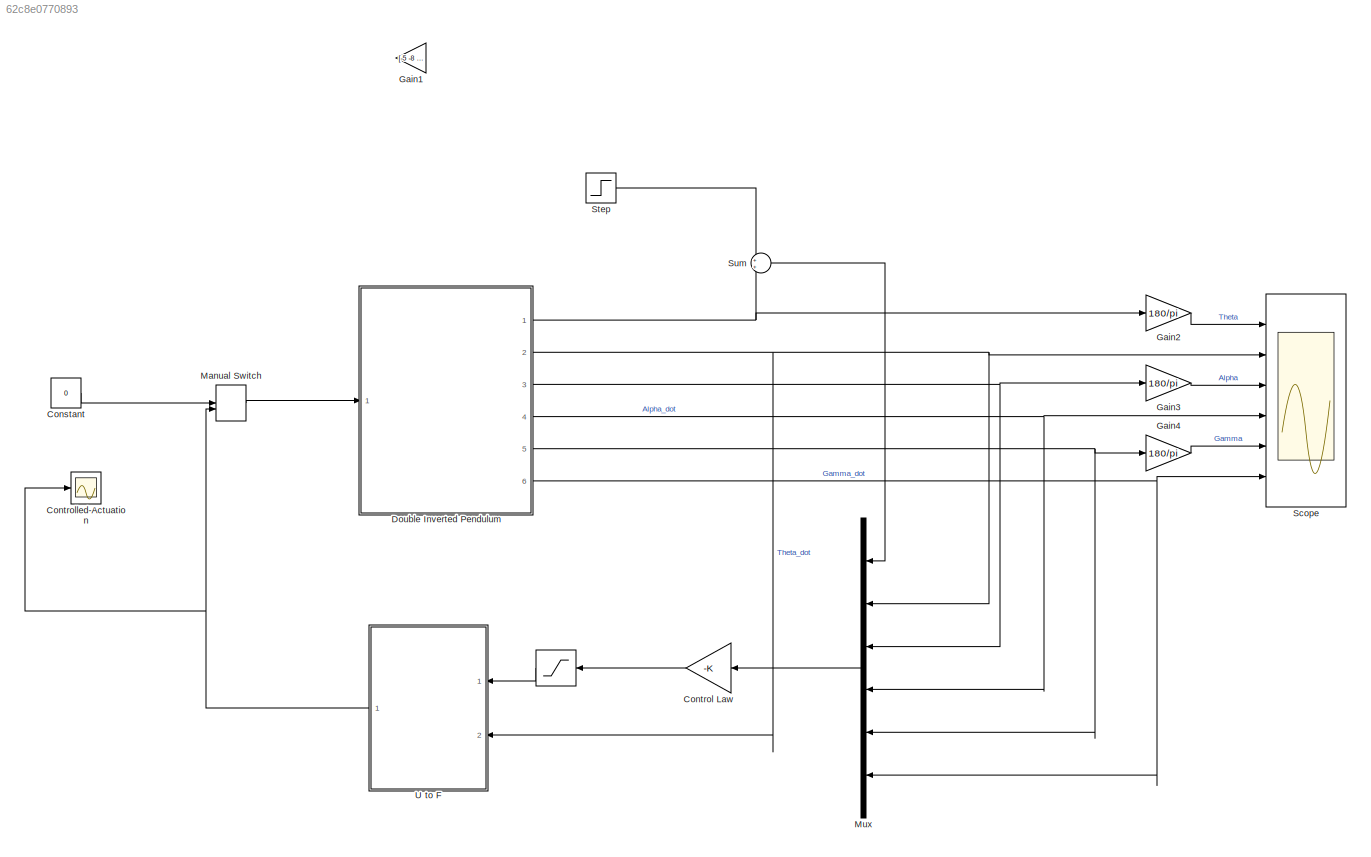
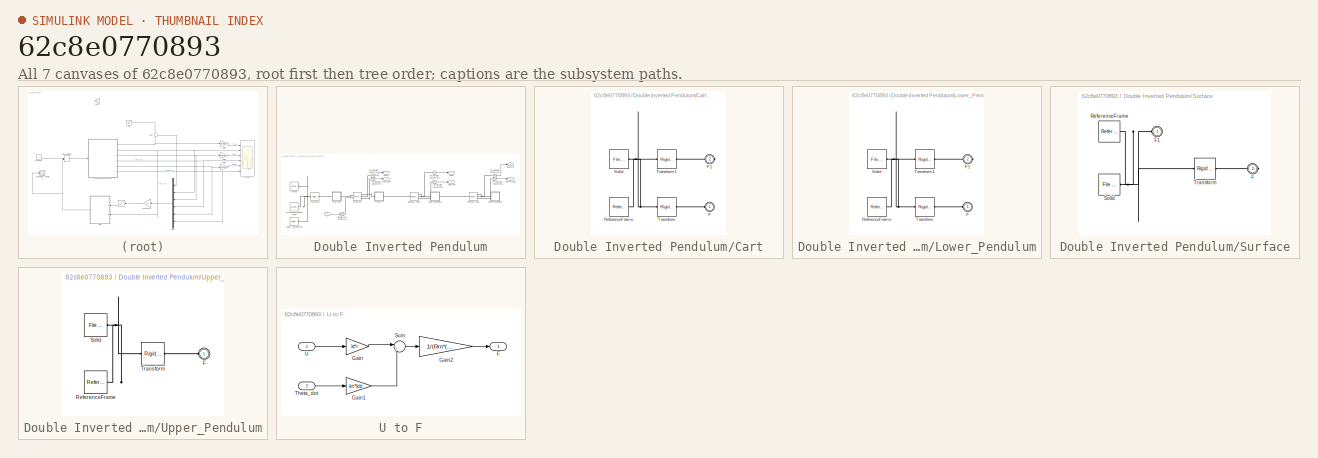
[diagram: thumbnail index - all 7 canvases of the model, root first then tree order]
MODEL slx_62c8e0770893
KIND model
CONFIG AbsTol = auto
CONFIG EnableMultiTasking = off
CONFIG FixedStep = auto
CONFIG MaxStep = auto
CONFIG MinStep = auto
CONFIG RelTol = 1e-3
CONFIG SampleTimeConstraint = Unconstrained
CONFIG Solver = VariableStepAuto
CONFIG SolverName = VariableStepAuto
CONFIG StartTime = 0.0
CONFIG StopTime = 20
WORKSPACE source: external: MATLAB File  (data not in archive)
BLOCK [Saturate]  
  LowerLimit = -24
  NameLocation = top
  UpperLimit = 24
BLOCK [Constant] Constant
  Value = 0
BLOCK [Gain] Control Law
  Gain = -K
  Multiplication = Matrix(K*u)
BLOCK [Scope] Controlled-Actuation
  Floating = off
  NumInputPorts = 1
  Ports = [1]
  ScopeSpecificationString = Simulink.scopes.TimeScopeBlockCfg('CurrentConfiguration', extmgr.ConfigurationSet(extmgr.Configuration('Core','General UI',true),extmgr.Configuration('Core','Source UI',true),extmgr.Configuration('Sources','WiredSimulink',true,'DataLoggingVariableName','ScopeData1'),extmgr.Configuration('Visuals','Time Domain',true,'SerializedDisplays',{struct('MinYLimReal','-7.679','MaxYLimReal','7.74379','YLabel...<+1361ch>
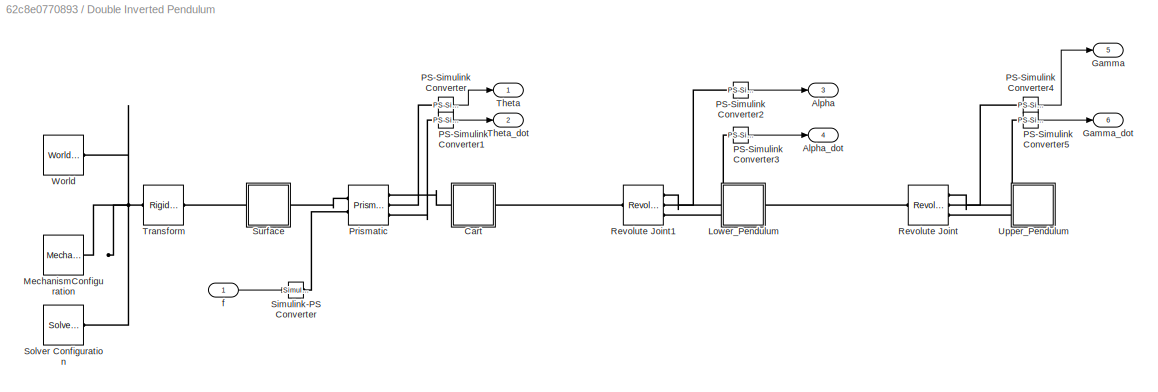
BLOCK [SubSystem] Double Inverted Pendulum
  Ports = [1, 6]
  RequestExecContextInheritance = off
BLOCK [Outport] Double Inverted Pendulum/Alpha
  Port = 3
BLOCK [Outport] Double Inverted Pendulum/Alpha_dot
  Port = 4
BLOCK [SubSystem] Double Inverted Pendulum/Cart
  Ports = [0, 0, 0, 0, 0, 1, 1]
  RequestExecContextInheritance = off
BLOCK [PMIOPort] Double Inverted Pendulum/Cart/F
  Side = Left
BLOCK [PMIOPort] Double Inverted Pendulum/Cart/F1
  Port = 2
  Side = Right
BLOCK [Reference] Double Inverted Pendulum/Cart/ReferenceFrame  REF=sm_lib/Frames and
Transforms/Reference
Frame
  Ports = [0, 0, 0, 0, 0, 0, 1]
  SourceBlock = sm_lib/Frames and\nTransforms/Reference\nFrame
  SourceProductBaseCode = MS
  SourceType = Reference\nFrame
BLOCK [Reference] Double Inverted Pendulum/Cart/Solid  REF=sm_lib/Body Elements/File Solid
  Ports = [0, 0, 0, 0, 0, 0, 1]
  SourceBlock = sm_lib/Body Elements/File Solid
  SourceProductBaseCode = MS
  SourceType = File Solid
BLOCK [Reference] Double Inverted Pendulum/Cart/Transform  REF=sm_lib/Frames and
Transforms/Rigid
Transform
  Ports = [0, 0, 0, 0, 0, 1, 1]
  SourceBlock = sm_lib/Frames and\nTransforms/Rigid\nTransform
  SourceProductBaseCode = MS
  SourceType = Rigid\nTransform
BLOCK [Reference] Double Inverted Pendulum/Cart/Transform1  REF=sm_lib/Frames and
Transforms/Rigid
Transform
  Ports = [0, 0, 0, 0, 0, 1, 1]
  SourceBlock = sm_lib/Frames and\nTransforms/Rigid\nTransform
  SourceProductBaseCode = MS
  SourceType = Rigid\nTransform
BLOCK [Outport] Double Inverted Pendulum/Gamma
  Port = 5
BLOCK [Outport] Double Inverted Pendulum/Gamma_dot
  Port = 6
BLOCK [SubSystem] Double Inverted Pendulum/Lower_Pendulum
  Ports = [0, 0, 0, 0, 0, 1, 1]
  RequestExecContextInheritance = off
BLOCK [PMIOPort] Double Inverted Pendulum/Lower_Pendulum/F
  Side = Left
BLOCK [PMIOPort] Double Inverted Pendulum/Lower_Pendulum/F1
  Port = 2
  Side = Right
BLOCK [Reference] Double Inverted Pendulum/Lower_Pendulum/ReferenceFrame  REF=sm_lib/Frames and
Transforms/Reference
Frame
  Ports = [0, 0, 0, 0, 0, 0, 1]
  SourceBlock = sm_lib/Frames and\nTransforms/Reference\nFrame
  SourceProductBaseCode = MS
  SourceType = Reference\nFrame
BLOCK [Reference] Double Inverted Pendulum/Lower_Pendulum/Solid  REF=sm_lib/Body Elements/File Solid
  Ports = [0, 0, 0, 0, 0, 0, 1]
  SourceBlock = sm_lib/Body Elements/File Solid
  SourceProductBaseCode = MS
  SourceType = File Solid
BLOCK [Reference] Double Inverted Pendulum/Lower_Pendulum/Transform  REF=sm_lib/Frames and
Transforms/Rigid
Transform
  Ports = [0, 0, 0, 0, 0, 1, 1]
  SourceBlock = sm_lib/Frames and\nTransforms/Rigid\nTransform
  SourceProductBaseCode = MS
  SourceType = Rigid\nTransform
BLOCK [Reference] Double Inverted Pendulum/Lower_Pendulum/Transform1  REF=sm_lib/Frames and
Transforms/Rigid
Transform
  Ports = [0, 0, 0, 0, 0, 1, 1]
  SourceBlock = sm_lib/Frames and\nTransforms/Rigid\nTransform
  SourceProductBaseCode = MS
  SourceType = Rigid\nTransform
BLOCK [Reference] Double Inverted Pendulum/MechanismConfiguration  REF=sm_lib/Utilities/Mechanism
Configuration
  Ports = [0, 0, 0, 0, 0, 0, 1]
  SourceBlock = sm_lib/Utilities/Mechanism\nConfiguration
  SourceProductBaseCode = MS
  SourceType = Mechanism\nConfiguration
BLOCK [Reference] Double Inverted Pendulum/PS-Simulink Converter  REF=nesl_utility/PS-Simulink
Converter
  Ports = [0, 1, 0, 0, 0, 1]
  SourceBlock = nesl_utility/PS-Simulink\nConverter
  SourceProductBaseCode = SS
  SourceType = PS-Simulink\nConverter
BLOCK [Reference] Double Inverted Pendulum/PS-Simulink Converter1  REF=nesl_utility/PS-Simulink
Converter
  Ports = [0, 1, 0, 0, 0, 1]
  SourceBlock = nesl_utility/PS-Simulink\nConverter
  SourceProductBaseCode = SS
  SourceType = PS-Simulink\nConverter
BLOCK [Reference] Double Inverted Pendulum/PS-Simulink Converter2  REF=nesl_utility/PS-Simulink
Converter
  Ports = [0, 1, 0, 0, 0, 1]
  SourceBlock = nesl_utility/PS-Simulink\nConverter
  SourceProductBaseCode = SS
  SourceType = PS-Simulink\nConverter
BLOCK [Reference] Double Inverted Pendulum/PS-Simulink Converter3  REF=nesl_utility/PS-Simulink
Converter
  Ports = [0, 1, 0, 0, 0, 1]
  SourceBlock = nesl_utility/PS-Simulink\nConverter
  SourceProductBaseCode = SS
  SourceType = PS-Simulink\nConverter
BLOCK [Reference] Double Inverted Pendulum/PS-Simulink Converter4  REF=nesl_utility/PS-Simulink
Converter
  Ports = [0, 1, 0, 0, 0, 1]
  SourceBlock = nesl_utility/PS-Simulink\nConverter
  SourceProductBaseCode = SS
  SourceType = PS-Simulink\nConverter
BLOCK [Reference] Double Inverted Pendulum/PS-Simulink Converter5  REF=nesl_utility/PS-Simulink
Converter
  Ports = [0, 1, 0, 0, 0, 1]
  SourceBlock = nesl_utility/PS-Simulink\nConverter
  SourceProductBaseCode = SS
  SourceType = PS-Simulink\nConverter
BLOCK [Reference] Double Inverted Pendulum/Prismatic  REF=sm_lib/Joints/Prismatic
Joint
  Ports = [0, 0, 0, 0, 0, 2, 3]
  SourceBlock = sm_lib/Joints/Prismatic\nJoint
  SourceProductBaseCode = MS
  SourceType = Prismatic\nJoint
BLOCK [Reference] Double Inverted Pendulum/Revolute Joint  REF=sm_lib/Joints/Revolute Joint
  Ports = [0, 0, 0, 0, 0, 1, 3]
  SourceBlock = sm_lib/Joints/Revolute Joint
  SourceProductBaseCode = MS
  SourceType = Revolute Joint
BLOCK [Reference] Double Inverted Pendulum/Revolute Joint1  REF=sm_lib/Joints/Revolute Joint
  Ports = [0, 0, 0, 0, 0, 1, 3]
  SourceBlock = sm_lib/Joints/Revolute Joint
  SourceProductBaseCode = MS
  SourceType = Revolute Joint
BLOCK [Reference] Double Inverted Pendulum/Simulink-PS Converter  REF=nesl_utility/Simulink-PS
Converter
  Ports = [1, 0, 0, 0, 0, 0, 1]
  SourceBlock = nesl_utility/Simulink-PS\nConverter
  SourceProductBaseCode = SS
  SourceType = Simulink-PS\nConverter
BLOCK [Reference] Double Inverted Pendulum/Solver Configuration  REF=nesl_utility/Solver
Configuration
  Ports = [0, 0, 0, 0, 0, 0, 1]
  SourceBlock = nesl_utility/Solver\nConfiguration
  SourceProductBaseCode = SS
  SourceType = Solver\nConfiguration
BLOCK [SubSystem] Double Inverted Pendulum/Surface
  Ports = [0, 0, 0, 0, 0, 1, 1]
  RequestExecContextInheritance = off
BLOCK [PMIOPort] Double Inverted Pendulum/Surface/F
  Port = 2
  Side = Right
BLOCK [PMIOPort] Double Inverted Pendulum/Surface/F1
  Side = Left
BLOCK [Reference] Double Inverted Pendulum/Surface/ReferenceFrame  REF=sm_lib/Frames and
Transforms/Reference
Frame
  Ports = [0, 0, 0, 0, 0, 0, 1]
  SourceBlock = sm_lib/Frames and\nTransforms/Reference\nFrame
  SourceProductBaseCode = MS
  SourceType = Reference\nFrame
BLOCK [Reference] Double Inverted Pendulum/Surface/Solid  REF=sm_lib/Body Elements/File Solid
  Ports = [0, 0, 0, 0, 0, 0, 1]
  SourceBlock = sm_lib/Body Elements/File Solid
  SourceProductBaseCode = MS
  SourceType = File Solid
BLOCK [Reference] Double Inverted Pendulum/Surface/Transform  REF=sm_lib/Frames and
Transforms/Rigid
Transform
  Ports = [0, 0, 0, 0, 0, 1, 1]
  SourceBlock = sm_lib/Frames and\nTransforms/Rigid\nTransform
  SourceProductBaseCode = MS
  SourceType = Rigid\nTransform
BLOCK [Outport] Double Inverted Pendulum/Theta
BLOCK [Outport] Double Inverted Pendulum/Theta_dot
  Port = 2
BLOCK [Reference] Double Inverted Pendulum/Transform  REF=sm_lib/Frames and
Transforms/Rigid
Transform
  Ports = [0, 0, 0, 0, 0, 1, 1]
  SourceBlock = sm_lib/Frames and\nTransforms/Rigid\nTransform
  SourceProductBaseCode = MS
  SourceType = Rigid\nTransform
BLOCK [SubSystem] Double Inverted Pendulum/Upper_Pendulum
  Ports = [0, 0, 0, 0, 0, 1]
  RequestExecContextInheritance = off
BLOCK [PMIOPort] Double Inverted Pendulum/Upper_Pendulum/F
  Side = Left
BLOCK [Reference] Double Inverted Pendulum/Upper_Pendulum/ReferenceFrame  REF=sm_lib/Frames and
Transforms/Reference
Frame
  Ports = [0, 0, 0, 0, 0, 0, 1]
  SourceBlock = sm_lib/Frames and\nTransforms/Reference\nFrame
  SourceProductBaseCode = MS
  SourceType = Reference\nFrame
BLOCK [Reference] Double Inverted Pendulum/Upper_Pendulum/Solid  REF=sm_lib/Body Elements/File Solid
  Ports = [0, 0, 0, 0, 0, 0, 1]
  SourceBlock = sm_lib/Body Elements/File Solid
  SourceProductBaseCode = MS
  SourceType = File Solid
BLOCK [Reference] Double Inverted Pendulum/Upper_Pendulum/Transform  REF=sm_lib/Frames and
Transforms/Rigid
Transform
  Ports = [0, 0, 0, 0, 0, 1, 1]
  SourceBlock = sm_lib/Frames and\nTransforms/Rigid\nTransform
  SourceProductBaseCode = MS
  SourceType = Rigid\nTransform
BLOCK [Reference] Double Inverted Pendulum/World  REF=sm_lib/Frames and
Transforms/World Frame
  Ports = [0, 0, 0, 0, 0, 0, 1]
  SourceBlock = sm_lib/Frames and\nTransforms/World Frame
  SourceProductBaseCode = MS
  SourceType = World Frame
BLOCK [Inport] Double Inverted Pendulum/f
BLOCK [Gain] Gain1
  Commented = on
  Gain = [-5 -8 -26 -12 -100 -17]
  Multiplication = Matrix(K*u)
BLOCK [Gain] Gain2
  Gain = 180/pi
BLOCK [Gain] Gain3
  Gain = 180/pi
BLOCK [Gain] Gain4
  Gain = 180/pi
BLOCK [ManualSwitch] Manual Switch
BLOCK [Mux] Mux
  DisplayOption = bar
  Inputs = 6
  Ports = [6, 1]
BLOCK [Scope] Scope
  Floating = off
  NumInputPorts = 6
  Ports = [6]
  ScopeSpecificationString = Simulink.scopes.TimeScopeBlockCfg('CurrentConfiguration', extmgr.ConfigurationSet(extmgr.Configuration('Core','General UI',true,'FigureColor',[1 1 1]),extmgr.Configuration('Core','Source UI',true),extmgr.Configuration('Sources','WiredSimulink',true,'DataLoggingSaveFormat','Array','DataLoggingLimitDataPoints',true,'DataLoggingDecimation','1'),extmgr.Configuration('Visuals','Time Domain',true,'Seria...<+6006ch>
BLOCK [Step] Step
  After = .5
  SampleTime = 0
  Time = 5
BLOCK [Sum] Sum
  Ports = [2, 1]
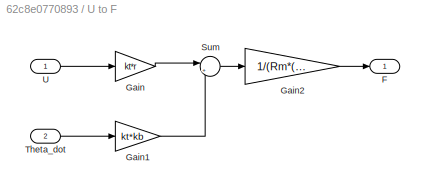
BLOCK [SubSystem] U to F
  Ports = [2, 1]
  RequestExecContextInheritance = off
BLOCK [Outport] U to F/F
  VectorParamsAs1DForOutWhenUnconnected = off
BLOCK [Gain] U to F/Gain
  Gain = kt*r
BLOCK [Gain] U to F/Gain1
  Gain = kt*kb
BLOCK [Gain] U to F/Gain2
  Gain = 1/(Rm*(r)^2)
BLOCK [Sum] U to F/Sum
  Inputs = |+-
  Ports = [2, 1]
BLOCK [Inport] U to F/Theta_dot
  Port = 2
BLOCK [Inport] U to F/U
LINE  :1 -> U to F:1
LINE Constant:1 -> Manual Switch:1
LINE Control Law:1 ->  :1
LINE Double Inverted Pendulum/PS-Simulink Converter1:1 -> Double Inverted Pendulum/Theta_dot:1
LINE Double Inverted Pendulum/PS-Simulink Converter2:1 -> Double Inverted Pendulum/Alpha:1
LINE Double Inverted Pendulum/PS-Simulink Converter3:1 -> Double Inverted Pendulum/Alpha_dot:1
LINE Double Inverted Pendulum/PS-Simulink Converter4:1 -> Double Inverted Pendulum/Gamma:1
LINE Double Inverted Pendulum/PS-Simulink Converter5:1 -> Double Inverted Pendulum/Gamma_dot:1
LINE Double Inverted Pendulum/PS-Simulink Converter:1 -> Double Inverted Pendulum/Theta:1
LINE Double Inverted Pendulum/f:1 -> Double Inverted Pendulum/Simulink-PS Converter:1
NET Double Inverted Pendulum:1 -> Gain2:1, Sum:2
NET Double Inverted Pendulum:2 -> Mux:2, Scope:2, U to F:2
NET Double Inverted Pendulum:3 -> Gain3:1, Mux:3
NET Double Inverted Pendulum:4 -> Mux:4, Scope:4
NET Double Inverted Pendulum:5 -> Gain4:1, Mux:5
NET Double Inverted Pendulum:6 -> Mux:6, Scope:6
LINE Gain2:1 -> Scope:1
LINE Gain3:1 -> Scope:3
LINE Gain4:1 -> Scope:5
LINE Manual Switch:1 -> Double Inverted Pendulum:1
LINE Mux:1 -> Control Law:1
LINE Step:1 -> Sum:1
LINE Sum:1 -> Mux:1
LINE U to F/Gain1:1 -> U to F/Sum:2
LINE U to F/Gain2:1 -> U to F/F:1
LINE U to F/Gain:1 -> U to F/Sum:1
LINE U to F/Sum:1 -> U to F/Gain2:1
LINE U to F/Theta_dot:1 -> U to F/Gain1:1
LINE U to F/U:1 -> U to F/Gain:1
NET U to F:1 -> Controlled-Actuation:1, Manual Switch:2
PLINE Double Inverted Pendulum/Cart/F1:RConn1 -- Double Inverted Pendulum/Cart/Transform1:RConn1
PLINE Double Inverted Pendulum/Cart/F:RConn1 -- Double Inverted Pendulum/Cart/Transform:RConn1
PNET net1: Double Inverted Pendulum/Cart/ReferenceFrame:RConn1 -- Double Inverted Pendulum/Cart/Solid:RConn1 -- Double Inverted Pendulum/Cart/Transform1:LConn1 -- Double Inverted Pendulum/Cart/Transform:LConn1
PLINE Double Inverted Pendulum/Cart:LConn1 -- Double Inverted Pendulum/Prismatic:RConn1
PLINE Double Inverted Pendulum/Cart:RConn1 -- Double Inverted Pendulum/Revolute Joint1:LConn1
PLINE Double Inverted Pendulum/Lower_Pendulum/F1:RConn1 -- Double Inverted Pendulum/Lower_Pendulum/Transform1:RConn1
PLINE Double Inverted Pendulum/Lower_Pendulum/F:RConn1 -- Double Inverted Pendulum/Lower_Pendulum/Transform:RConn1
PNET net2: Double Inverted Pendulum/Lower_Pendulum/ReferenceFrame:RConn1 -- Double Inverted Pendulum/Lower_Pendulum/Solid:RConn1 -- Double Inverted Pendulum/Lower_Pendulum/Transform1:LConn1 -- Double Inverted Pendulum/Lower_Pendulum/Transform:LConn1
PLINE Double Inverted Pendulum/Lower_Pendulum:LConn1 -- Double Inverted Pendulum/Revolute Joint1:RConn1
PLINE Double Inverted Pendulum/Lower_Pendulum:RConn1 -- Double Inverted Pendulum/Revolute Joint:LConn1
PNET net3: Double Inverted Pendulum/MechanismConfiguration:RConn1 -- Double Inverted Pendulum/Solver Configuration:RConn1 -- Double Inverted Pendulum/Transform:LConn1 -- Double Inverted Pendulum/World:RConn1
PLINE Double Inverted Pendulum/PS-Simulink Converter1:LConn1 -- Double Inverted Pendulum/Prismatic:RConn3
PLINE Double Inverted Pendulum/PS-Simulink Converter2:LConn1 -- Double Inverted Pendulum/Revolute Joint1:RConn2
PLINE Double Inverted Pendulum/PS-Simulink Converter3:LConn1 -- Double Inverted Pendulum/Revolute Joint1:RConn3
PLINE Double Inverted Pendulum/PS-Simulink Converter4:LConn1 -- Double Inverted Pendulum/Revolute Joint:RConn2
PLINE Double Inverted Pendulum/PS-Simulink Converter5:LConn1 -- Double Inverted Pendulum/Revolute Joint:RConn3
PLINE Double Inverted Pendulum/PS-Simulink Converter:LConn1 -- Double Inverted Pendulum/Prismatic:RConn2
PLINE Double Inverted Pendulum/Prismatic:LConn1 -- Double Inverted Pendulum/Surface:RConn1
PLINE Double Inverted Pendulum/Prismatic:LConn2 -- Double Inverted Pendulum/Simulink-PS Converter:RConn1
PLINE Double Inverted Pendulum/Revolute Joint:RConn1 -- Double Inverted Pendulum/Upper_Pendulum:LConn1
PNET net4: Double Inverted Pendulum/Surface/F1:RConn1 -- Double Inverted Pendulum/Surface/ReferenceFrame:RConn1 -- Double Inverted Pendulum/Surface/Solid:RConn1 -- Double Inverted Pendulum/Surface/Transform:LConn1
PLINE Double Inverted Pendulum/Surface/F:RConn1 -- Double Inverted Pendulum/Surface/Transform:RConn1
PLINE Double Inverted Pendulum/Surface:LConn1 -- Double Inverted Pendulum/Transform:RConn1
PLINE Double Inverted Pendulum/Upper_Pendulum/F:RConn1 -- Double Inverted Pendulum/Upper_Pendulum/Transform:RConn1
PNET net5: Double Inverted Pendulum/Upper_Pendulum/ReferenceFrame:RConn1 -- Double Inverted Pendulum/Upper_Pendulum/Solid:RConn1 -- Double Inverted Pendulum/Upper_Pendulum/Transform:LConn1
note: NET lines group one-source signal fan-out (src -> all destinations, sorted); 1:1 wires keep LINE; PNET lines group multi-terminal physical nets as a canonical sorted terminal list (undirected conserving connections); 2-terminal nets keep the pairwise PLINE form
